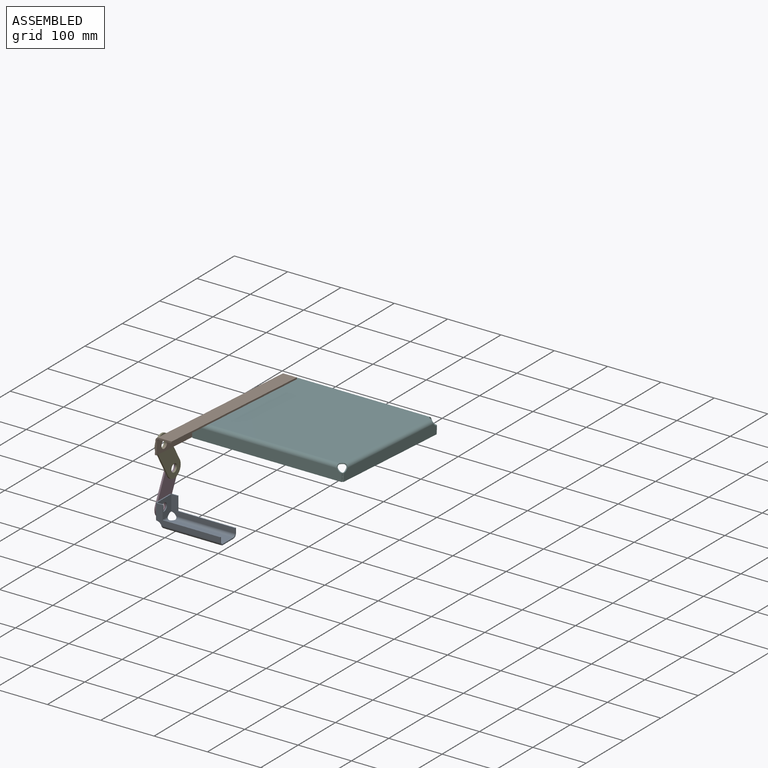
[diagram: assembled view]
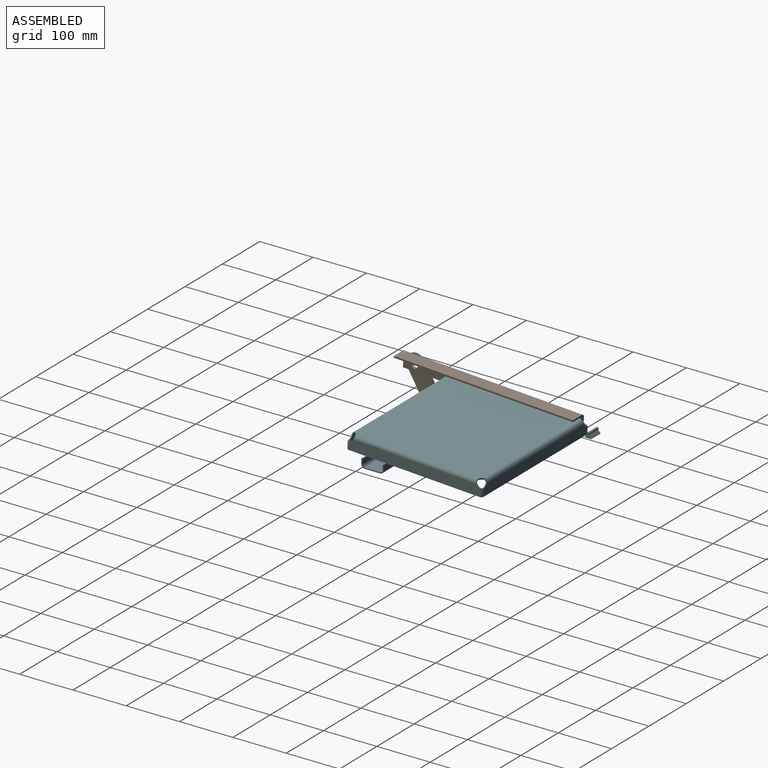
[diagram: assembled view, second angle]
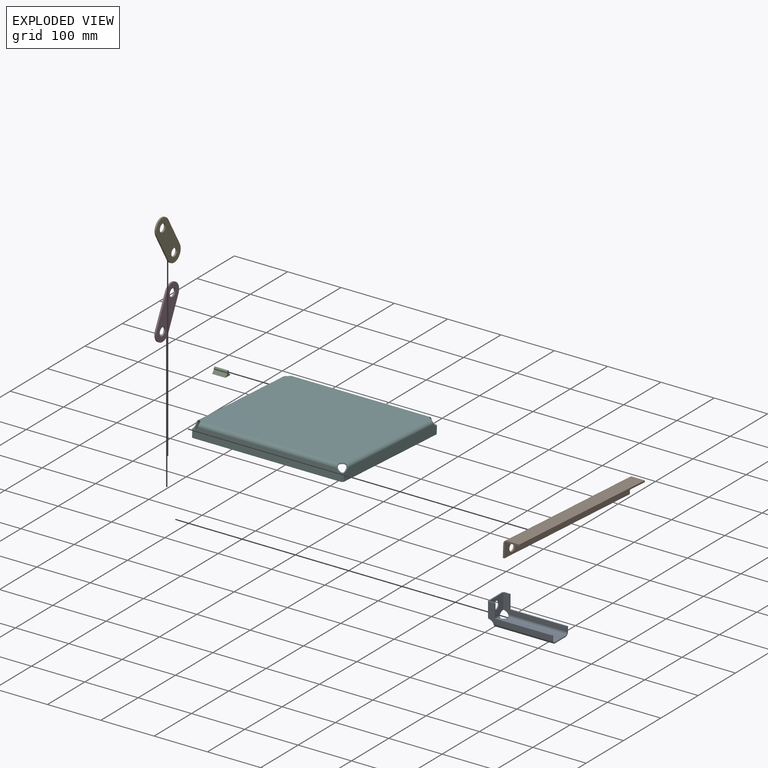
[diagram: exploded view]
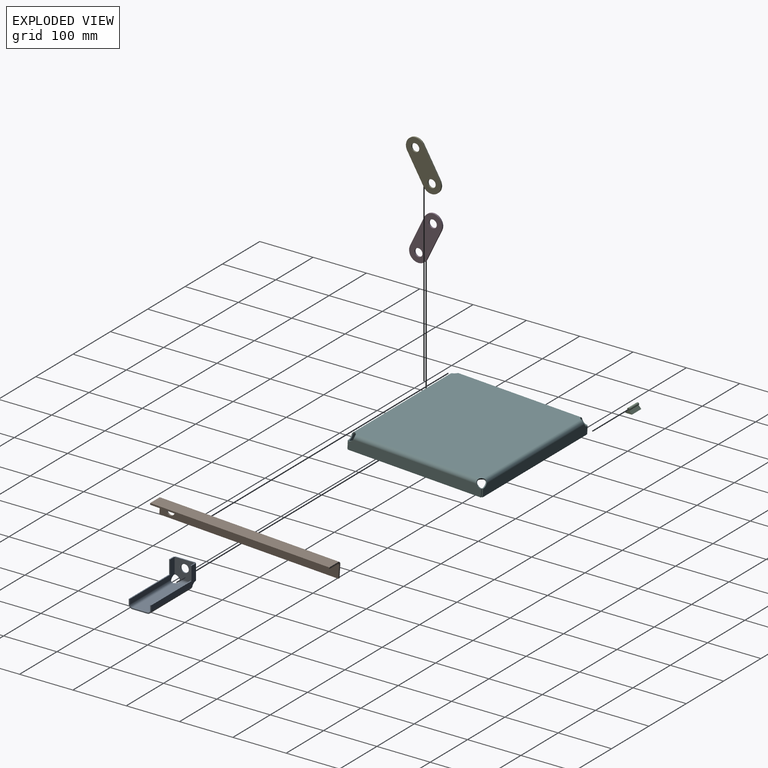
[diagram: exploded view, second angle]
ASSEMBLY  parts=6 mates=4
PART A: 41 faces, bbox 122x42x41.8 mm
  f0: plane 29.66x2mm, normal (-1,0,0), area 59.3mm2, adj f3,f5,f6,f7
  f1: plane 108x2mm, normal (0,0,1), area 216mm2, adj f2,f4,f5,f6
  f2: plane 9x2mm, normal (1,0,0), area 18mm2, adj f1,f5,f6,f33
  f3: plane 11.98x2mm, normal (0,0,1), area 24mm2, adj f0,f4,f5,f6
  f4: plane 25.85x2mm, normal (1,0,0), area 51.7mm2, adj f1,f3,f5,f6
  f5: plane 119.98x34.85mm, normal (0,1,0), area 1355.6mm2, adj f0,f1,f2,f3,f4,f7,f35
  f6: plane 119.98x34.85mm, normal (0,-1,0), area 1355.6mm2, adj f0,f1,f2,f3,f4,f7,f36
  f7: cylinder r=9.83mm len=9.02mm, axis (0,-1,0), area 21.9mm2, adj f0,f5,f6,f34
  f8: plane 29.66x2mm, normal (-1,0,0), area 59.3mm2, adj f9,f13,f14,f15
  f9: plane 119.98x34.85mm, normal (0,-1,0), area 1355.6mm2, adj f8,f10,f11,f12,f13,f15,f39
  f10: plane 9x2mm, normal (1,0,0), area 18mm2, adj f9,f11,f14,f37
  f11: plane 108x2mm, normal (0,0,1), area 216mm2, adj f9,f10,f12,f14
  f12: plane 25.85x2mm, normal (1,0,0), area 51.7mm2, adj f9,f11,f13,f14
  f13: plane 11.98x2mm, normal (0,0,1), area 24mm2, adj f8,f9,f12,f14
  f14: plane 119.98x34.85mm, normal (0,1,0), area 1355.6mm2, adj f8,f10,f11,f12,f13,f15,f40
  f15: cylinder r=9.83mm len=9.02mm, axis (0,1,0), area 21.9mm2, adj f8,f9,f14,f38
  f16: plane 28x2mm, normal (1,0,0), area 56mm2, adj f17,f18,f33,f37
  f17: plane 115x28mm, normal (0,0,-1), area 3200.5mm2, adj f16,f19,f20,f31,f35,f39
  f18: plane 115x28mm, normal (0,0,1), area 3200.5mm2, adj f16,f19,f20,f32,f36,f40
  f19: cylinder r=9.83mm len=4.04mm, axis (0,0,1), area 11.6mm2, adj f17,f18,f29,f34
  f20: cylinder r=9.83mm len=4.04mm, axis (0,0,1), area 11.6mm2, adj f17,f18,f30,f38
  f21: plane 29.66x2mm, normal (0,-1,0), area 59.3mm2, adj f23,f25,f26,f27
  f22: plane 29.66x2mm, normal (0,1,0), area 59.3mm2, adj f23,f25,f26,f28
  f23: plane 37.96x2mm, normal (0,0,1), area 75.9mm2, adj f21,f22,f25,f26
  f24: cylinder r=7.5mm len=15mm, axis (1,0,0), area 94.2mm2, adj f25,f26
  f25: plane 37.96x34.85mm, normal (-1,0,0), area 1078.3mm2, adj f21,f22,f23,f24,f27,f28,f31
  f26: plane 37.96x34.85mm, normal (1,0,0), area 1078.3mm2, adj f21,f22,f23,f24,f27,f28,f32
  f27: cylinder r=9.83mm len=9.02mm, axis (1,0,0), area 21.9mm2, adj f21,f25,f26,f30
  f28: cylinder r=9.83mm len=9.02mm, axis (1,0,0), area 21.9mm2, adj f22,f25,f26,f29
  f29: bspline ~7x7mm, area 19.6mm2, adj f19,f28,f31,f32
  f30: bspline ~7x7mm, area 19.6mm2, adj f20,f27,f31,f32
  f31: cylinder r=7mm len=19.93mm, axis (0,1,0), area 201.9mm2, adj f17,f25,f29,f30
  f32: cylinder r=5mm len=19.93mm, axis (0,1,0), area 144.2mm2, adj f18,f26,f29,f30
  f33: plane 7x7mm, normal (1,0,0), area 18.8mm2, adj f2,f16,f35,f36
  f34: bspline ~7x7mm, area 19.6mm2, adj f7,f19,f35,f36
  f35: cylinder r=7mm len=110.96mm, axis (1,0,0), area 1211.5mm2, adj f5,f17,f33,f34
  f36: cylinder r=5mm len=110.96mm, axis (1,0,0), area 865.4mm2, adj f6,f18,f33,f34
  f37: plane 7x7mm, normal (1,0,0), area 18.8mm2, adj f10,f16,f39,f40
  f38: bspline ~7x7mm, area 19.6mm2, adj f15,f20,f39,f40
  f39: cylinder r=7mm len=110.96mm, axis (1,0,0), area 1211.5mm2, adj f9,f17,f37,f38
  f40: cylinder r=5mm len=110.96mm, axis (1,0,0), area 865.4mm2, adj f14,f18,f37,f38
PART B: 11 faces, bbox 30x336.4x30 mm
  f0: plane 30x30mm, normal (0,-1,0), area 165.2mm2, adj f1,f2,f3,f4,f6,f7,f8,f9
  f1: plane 336.4x3mm, normal (1,0,0), area 1009.2mm2, adj f0,f3,f5,f7
  f2: plane 336.4x3mm, normal (0,0,-1), area 1009.2mm2, adj f0,f4,f5,f8
  f3: plane 336.4x24mm, normal (0,0,1), area 8073.6mm2, adj f0,f1,f5,f6
  f4: plane 336.4x24mm, normal (-1,0,0), area 7896.9mm2, adj f0,f2,f5,f6,f10
  f5: plane 30x30mm, normal (0,1,0), area 165.2mm2, adj f1,f2,f3,f4,f6,f7,f8,f9
  f6: cylinder r=6mm len=336.4mm, axis (0,-1,0), area 3170.5mm2, adj f0,f3,f4,f5
  f7: plane 336.4x24mm, normal (0,0,-1), area 8073.6mm2, adj f0,f1,f5,f9
  f8: plane 336.4x24mm, normal (1,0,0), area 7896.9mm2, adj f0,f2,f5,f9,f10
  f9: cylinder r=3mm len=336.4mm, axis (0,-1,0), area 1585.2mm2, adj f0,f5,f7,f8
  f10: cylinder r=7.5mm len=15mm, axis (-1,0,0), area 141.4mm2, adj f4,f8
PART C: 6 faces, bbox 25x13.5x9.8 mm
  f0: plane 25x5.53mm, normal (0,-0.72,0.69), area 191.4mm2, adj f1,f3,f4,f5
  f1: cylinder r=2.5mm len=25mm, axis (1,0,0), area 299.8mm2, adj f0,f2,f4,f5
  f2: plane 25x5.46mm, normal (0,0.75,0.66), area 182.1mm2, adj f1,f3,f4,f5
  f3: plane 25x13.5mm, normal (0,0,-1), area 337.5mm2, adj f0,f2,f4,f5
  f4: plane 13.5x9.84mm, normal (-1,0,0), area 64.5mm2, adj f0,f1,f2,f3
  f5: plane 13.5x9.84mm, normal (1,0,0), area 64.5mm2, adj f0,f1,f2,f3
PART D: 8 faces, bbox 3x74.4x82.8 mm
  f0: cylinder r=17.5mm len=31mm, axis (1,0,0), area 164.9mm2, adj f1,f3,f5,f6
  f1: plane 47.81x39.42mm, normal (0,-0.77,0.64), area 185.9mm2, adj f0,f2,f5,f6
  f2: cylinder r=17.5mm len=31mm, axis (1,0,0), area 164.9mm2, adj f1,f3,f5,f6
  f3: plane 47.81x39.42mm, normal (0,0.77,-0.64), area 185.9mm2, adj f0,f2,f5,f6
  f4: cylinder r=7.5mm len=15mm, axis (1,0,0), area 141.4mm2, adj f5,f6
  f5: plane 82.81x74.42mm, normal (-1,0,0), area 2777.6mm2, adj f0,f1,f2,f3,f4,f7
  f6: plane 82.81x74.42mm, normal (1,0,0), area 2777.6mm2, adj f0,f1,f2,f3,f4,f7
  f7: cylinder r=7.5mm len=15mm, axis (1,0,0), area 141.4mm2, adj f5,f6
PART E: 8 faces, bbox 3x79.5x76.9 mm
  f0: plane 44.52x41.95mm, normal (0,0.69,0.73), area 183.5mm2, adj f1,f3,f5,f6
  f1: cylinder r=17.5mm len=30.24mm, axis (-1,0,0), area 164.9mm2, adj f0,f2,f5,f6
  f2: plane 44.52x41.95mm, normal (0,-0.69,-0.73), area 183.5mm2, adj f1,f3,f5,f6
  f3: cylinder r=17.5mm len=30.24mm, axis (-1,0,0), area 164.9mm2, adj f0,f2,f5,f6
  f4: cylinder r=7.5mm len=15mm, axis (-1,0,0), area 141.4mm2, adj f5,f6
  f5: plane 79.52x76.95mm, normal (1,0,0), area 2749.7mm2, adj f0,f1,f2,f3,f4,f7
  f6: plane 79.52x76.95mm, normal (-1,0,0), area 2749.7mm2, adj f0,f1,f2,f3,f4,f7
  f7: cylinder r=7.5mm len=15mm, axis (-1,0,0), area 141.4mm2, adj f5,f6
PART F: 50 faces, bbox 284x254x27 mm
  f0: plane 270x240mm, normal (0,0,1), area 64761mm2, adj f2,f3,f4,f5,f15,f26,f37,f48
  f1: plane 270x240mm, normal (0,0,-1), area 64761mm2, adj f2,f3,f4,f5,f16,f27,f38,f49
  f2: cylinder r=9.83mm len=4.04mm, axis (0,0,-1), area 11.6mm2, adj f0,f1,f13,f46
  f3: cylinder r=9.83mm len=4.04mm, axis (0,0,-1), area 11.6mm2, adj f0,f1,f24,f47
  f4: cylinder r=9.83mm len=4.04mm, axis (0,0,-1), area 11.6mm2, adj f0,f1,f25,f36
  f5: cylinder r=9.83mm len=4.04mm, axis (0,0,-1), area 11.6mm2, adj f0,f1,f14,f35
  f6: plane 14.81x2mm, normal (1,0,0), area 29.6mm2, adj f8,f9,f10,f11
  f7: plane 14.81x2mm, normal (-1,0,0), area 29.6mm2, adj f8,f9,f10,f12
  f8: plane 279.96x20mm, normal (0,-1,0), area 5531.4mm2, adj f6,f7,f9,f11,f12,f15
  f9: plane 279.96x2mm, normal (0,0,-1), area 559.9mm2, adj f6,f7,f8,f10
  f10: plane 279.96x20mm, normal (0,1,0), area 5531.4mm2, adj f6,f7,f9,f11,f12,f16
  f11: cylinder r=9.83mm len=9.02mm, axis (0,1,0), area 21.9mm2, adj f6,f8,f10,f13
  f12: cylinder r=9.83mm len=9.02mm, axis (0,1,0), area 21.9mm2, adj f7,f8,f10,f14
  f13: bspline ~7x7mm, area 19.6mm2, adj f2,f11,f15,f16
  f14: bspline ~7x7mm, area 19.6mm2, adj f5,f12,f15,f16
  f15: cylinder r=7mm len=261.93mm, axis (1,0,0), area 2862.8mm2, adj f0,f8,f13,f14
  f16: cylinder r=5mm len=261.93mm, axis (1,0,0), area 2044.9mm2, adj f1,f10,f13,f14
  f17: plane 14.81x2mm, normal (-1,0,0), area 29.6mm2, adj f19,f20,f21,f22
  f18: plane 14.81x2mm, normal (1,0,0), area 29.6mm2, adj f19,f20,f21,f23
  f19: plane 279.96x2mm, normal (0,0,-1), area 559.9mm2, adj f17,f18,f20,f21
  f20: plane 279.96x20mm, normal (0,1,0), area 5531.4mm2, adj f17,f18,f19,f22,f23,f26
  f21: plane 279.96x20mm, normal (0,-1,0), area 5531.4mm2, adj f17,f18,f19,f22,f23,f27
  f22: cylinder r=9.83mm len=9.02mm, axis (0,-1,0), area 21.9mm2, adj f17,f20,f21,f25
  f23: cylinder r=9.83mm len=9.02mm, axis (0,-1,0), area 21.9mm2, adj f18,f20,f21,f24
  f24: bspline ~7x7mm, area 19.6mm2, adj f3,f23,f26,f27
  f25: bspline ~7x7mm, area 19.6mm2, adj f4,f22,f26,f27
  f26: cylinder r=7mm len=261.93mm, axis (1,0,0), area 2862.8mm2, adj f0,f20,f24,f25
  f27: cylinder r=5mm len=261.93mm, axis (1,0,0), area 2044.9mm2, adj f1,f21,f24,f25
  f28: plane 14.81x2mm, normal (0,1,0), area 29.6mm2, adj f30,f31,f32,f33
  f29: plane 14.81x2mm, normal (0,-1,0), area 29.6mm2, adj f30,f31,f32,f34
  f30: plane 249.96x20mm, normal (-1,0,0), area 4931.4mm2, adj f28,f29,f31,f33,f34,f37
  f31: plane 249.96x2mm, normal (0,0,-1), area 499.9mm2, adj f28,f29,f30,f32
  f32: plane 249.96x20mm, normal (1,0,0), area 4931.4mm2, adj f28,f29,f31,f33,f34,f38
  f33: cylinder r=9.83mm len=9.02mm, axis (1,0,0), area 21.9mm2, adj f28,f30,f32,f36
  f34: cylinder r=9.83mm len=9.02mm, axis (1,0,0), area 21.9mm2, adj f29,f30,f32,f35
  f35: bspline ~7x7mm, area 19.6mm2, adj f5,f34,f37,f38
  f36: bspline ~7x7mm, area 19.6mm2, adj f4,f33,f37,f38
  f37: cylinder r=7mm len=231.93mm, axis (0,-1,0), area 2533mm2, adj f0,f30,f35,f36
  f38: cylinder r=5mm len=231.93mm, axis (0,-1,0), area 1809.3mm2, adj f1,f32,f35,f36
  f39: plane 14.81x2mm, normal (0,1,0), area 29.6mm2, adj f41,f42,f43,f45
  f40: plane 14.81x2mm, normal (0,-1,0), area 29.6mm2, adj f41,f42,f43,f44
  f41: plane 249.96x2mm, normal (0,0,-1), area 499.9mm2, adj f39,f40,f42,f43
  f42: plane 249.96x20mm, normal (1,0,0), area 4931.4mm2, adj f39,f40,f41,f44,f45,f48
  f43: plane 249.96x20mm, normal (-1,0,0), area 4931.4mm2, adj f39,f40,f41,f44,f45,f49
  f44: cylinder r=9.83mm len=9.02mm, axis (-1,0,0), area 21.9mm2, adj f40,f42,f43,f46
  f45: cylinder r=9.83mm len=9.02mm, axis (-1,0,0), area 21.9mm2, adj f39,f42,f43,f47
  f46: bspline ~7x7mm, area 19.6mm2, adj f2,f44,f48,f49
  f47: bspline ~7x7mm, area 19.6mm2, adj f3,f45,f48,f49
  f48: cylinder r=7mm len=231.93mm, axis (0,-1,0), area 2533mm2, adj f0,f42,f46,f47
  f49: cylinder r=5mm len=231.93mm, axis (0,-1,0), area 1809.3mm2, adj f1,f43,f46,f47
PLACE A at identity
PLACE B rot(axis=(-1,0,0),3.3deg) t=(0,-2.01,14.65)mm
PLACE C at identity fixed
PLACE D rot(axis=(1,0,0),13.7deg) t=(-1,-10.48,15.61)mm
PLACE E rot(axis=(-1,0,0),16.5deg) t=(-1,-17.19,-0.18)mm
PLACE F rot(axis=(-1,0,0),3.3deg) t=(-0.02,-2.01,14.65)mm
MATE revolute F.f17 <-> C.f1  axis (1,0,0) through (82.65,252,42.04)mm
MATE revolute B.f10 <-> E.f3  axis (-1,0,0) through (77.65,-73.85,72.99)mm
MATE revolute E.f1 <-> D.f2  axis (-1,0,0) through (74.65,-43.06,20.13)mm
MATE revolute D.f0 <-> A.f24  axis (1,0,0) through (71.65,-70,-35.68)mm
